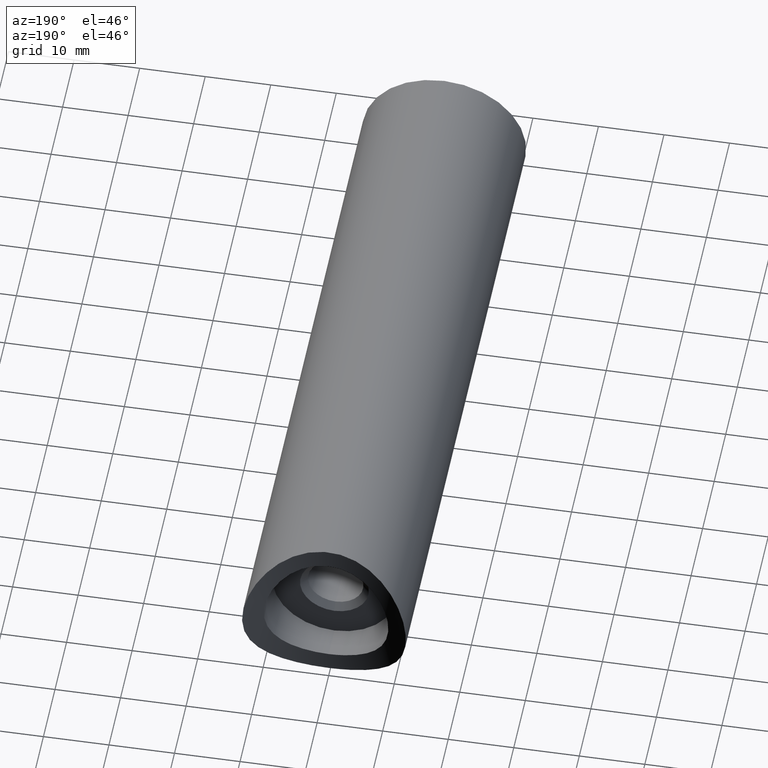
[diagram: clean part render]
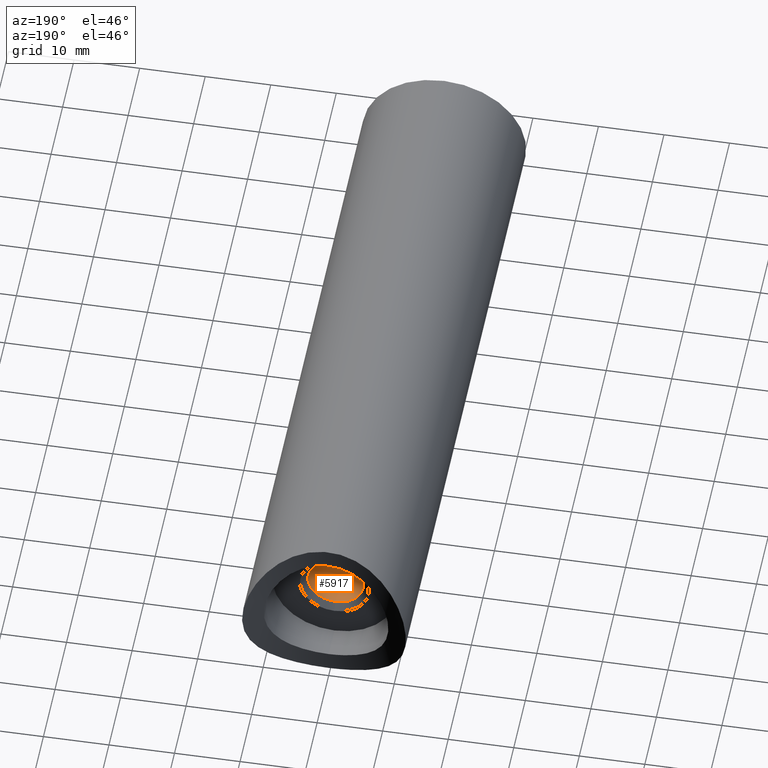
[diagram: same view with one face highlighted and labeled with its STEP entity id]
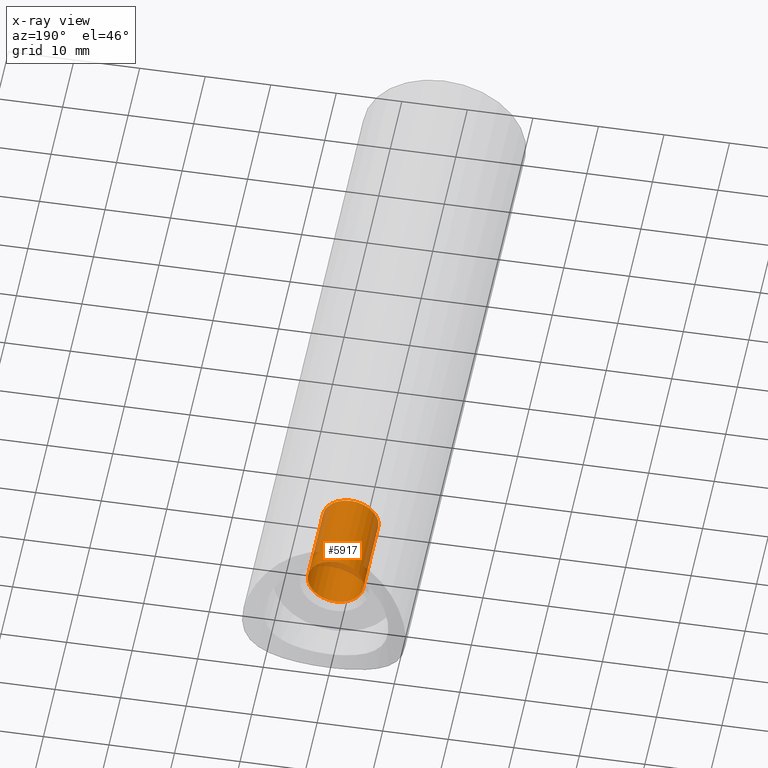
[diagram: x-ray of the same camera — body ghosted, the highlighted face saturated]
A machine part, auxiliary view. The second image highlights one B-rep face of the part: STEP entity #5917.
The next image is the same camera in x-ray: the body ghosted, the highlighted face saturated — about 15% of this face is hidden behind the body in this view.
In plain terms, the highlighted cylindrical surface (bore or boss wall) has radius 4.25 mm, axis along (-0, 1, -0).
Its self-contained STEP definition (entity closure, byte-faithful):
#498 = EDGE_CURVE ( 'NONE', #10619, #10619, #5245, .T. ) ;
#668 = EDGE_CURVE ( 'NONE', #7085, #7085, #2267, .T. ) ;
#790 = FACE_OUTER_BOUND ( 'NONE', #7761, .T. ) ;
#1026 = CARTESIAN_POINT ( 'NONE',  ( 0.000000000000000000, 81.00000000000001421, 0.000000000000000000 ) ) ;
#2267 = CIRCLE ( 'NONE', #10594, 4.249999999999984013 ) ;
#4329 = CARTESIAN_POINT ( 'NONE',  ( 0.000000000000000000, 94.00000000000000000, 0.000000000000000000 ) ) ;
#4486 = DIRECTION ( 'NONE',  ( 0.000000000000000000, -1.000000000000000000, 0.000000000000000000 ) ) ;
#5245 = CIRCLE ( 'NONE', #5831, 4.249999999999984013 ) ;
#5262 = CARTESIAN_POINT ( 'NONE',  ( 0.000000000000000000, 95.00000000000000000, 0.000000000000000000 ) ) ;
#5831 = AXIS2_PLACEMENT_3D ( 'NONE', #4329, #6683, #8876 ) ;
#5917 = ADVANCED_FACE ( 'NONE', ( #6332, #790 ), #12802, .F. ) ;
#6332 = FACE_OUTER_BOUND ( 'NONE', #8136, .T. ) ;
#6683 = DIRECTION ( 'NONE',  ( 0.000000000000000000, 1.000000000000000000, 0.000000000000000000 ) ) ;
#7085 = VERTEX_POINT ( 'NONE', #11931 ) ;
#7122 = CARTESIAN_POINT ( 'NONE',  ( 0.000000000000000000, 94.00000000000000000, -4.249999999999984013 ) ) ;
#7761 = EDGE_LOOP ( 'NONE', ( #11975 ) ) ;
#8136 = EDGE_LOOP ( 'NONE', ( #13466 ) ) ;
#8819 = DIRECTION ( 'NONE',  ( 0.000000000000000000, 0.000000000000000000, 1.000000000000000000 ) ) ;
#8876 = DIRECTION ( 'NONE',  ( 0.000000000000000000, 0.000000000000000000, -1.000000000000000000 ) ) ;
#9919 = AXIS2_PLACEMENT_3D ( 'NONE', #5262, #13520, #8819 ) ;
#10594 = AXIS2_PLACEMENT_3D ( 'NONE', #1026, #4486, #15190 ) ;
#10619 = VERTEX_POINT ( 'NONE', #7122 ) ;
#11931 = CARTESIAN_POINT ( 'NONE',  ( 0.000000000000000000, 81.00000000000001421, -4.249999999999984013 ) ) ;
#11975 = ORIENTED_EDGE ( 'NONE', *, *, #668, .T. ) ;
#12802 = CYLINDRICAL_SURFACE ( 'NONE', #9919, 4.249999999999984013 ) ;
#13466 = ORIENTED_EDGE ( 'NONE', *, *, #498, .T. ) ;
#13520 = DIRECTION ( 'NONE',  ( -0.000000000000000000, 1.000000000000000000, -0.000000000000000000 ) ) ;
#15190 = DIRECTION ( 'NONE',  ( 0.000000000000000000, 0.000000000000000000, -1.000000000000000000 ) ) ;